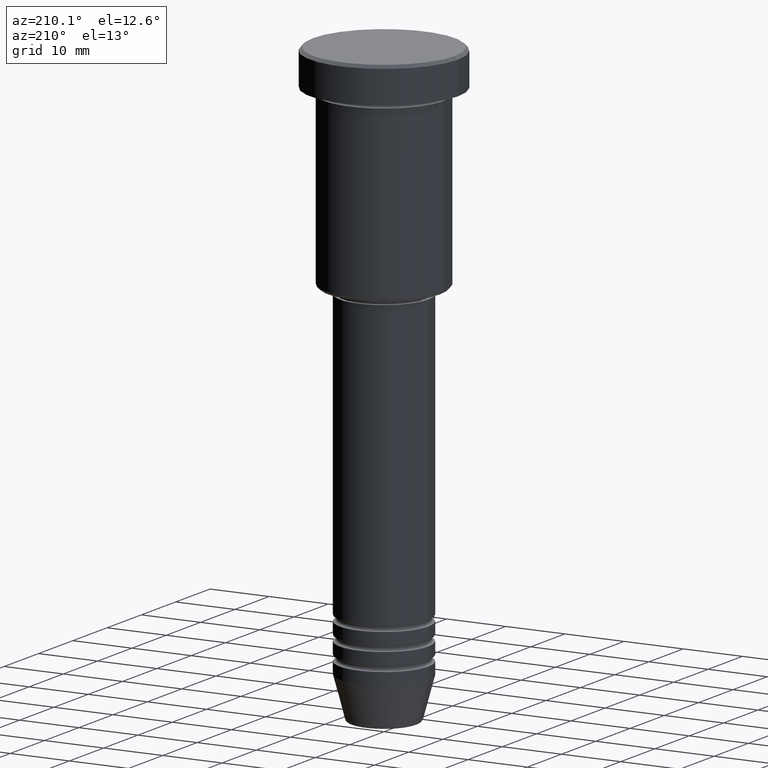
[diagram: clean part render]
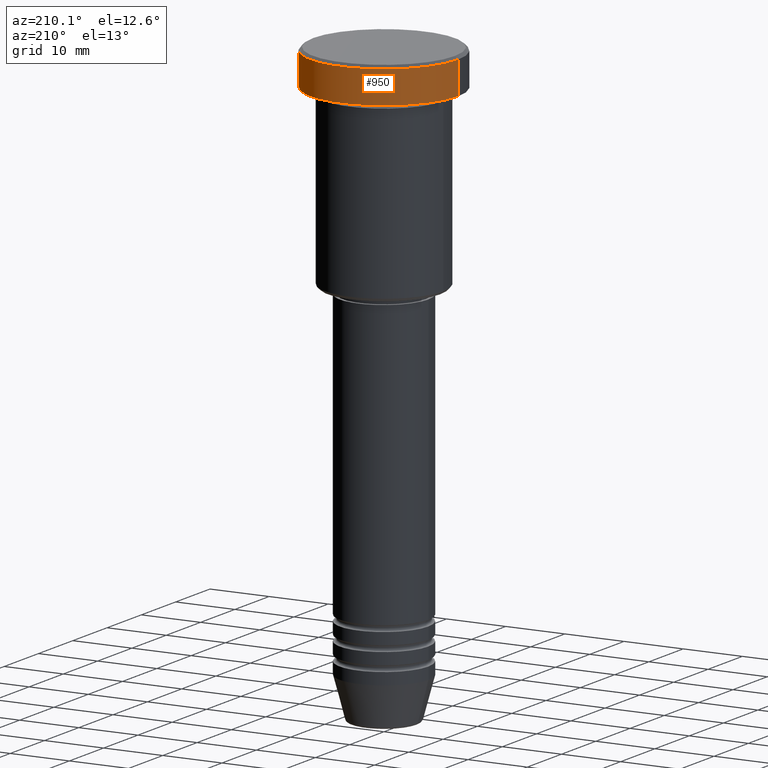
[diagram: same view with one face highlighted and labeled with its STEP entity id]
A machine part, auxiliary view. The second image highlights one B-rep face of the part: STEP entity #950.
In plain terms, the highlighted cylindrical surface (partial cylindrical patch) has radius 12.5 mm, axis along (-0, -0, 1).
Its self-contained STEP definition (entity closure, byte-faithful):
#21 = EDGE_CURVE ( 'NONE', #497, #1048, #1008, .T. ) ;
#36 = CARTESIAN_POINT ( 'NONE',  ( -12.50000000000000000, 1.530808498934191521E-15, 0.000000000000000000 ) ) ;
#61 = CARTESIAN_POINT ( 'NONE',  ( 12.50000000000000000, 0.000000000000000000, -0.5000000000000056621 ) ) ;
#77 = CARTESIAN_POINT ( 'NONE',  ( 0.000000000000000000, 0.000000000000000000, -5.999999999999996447 ) ) ;
#98 = FACE_OUTER_BOUND ( 'NONE', #161, .T. ) ;
#104 = CARTESIAN_POINT ( 'NONE',  ( -12.50000000000000000, 1.530808498934191521E-15, -5.999999999999996447 ) ) ;
#105 = DIRECTION ( 'NONE',  ( 1.000000000000000000, 0.000000000000000000, 0.000000000000000000 ) ) ;
#158 = AXIS2_PLACEMENT_3D ( 'NONE', #281, #722, #105 ) ;
#161 = EDGE_LOOP ( 'NONE', ( #804, #246, #1068, #225 ) ) ;
#190 = CARTESIAN_POINT ( 'NONE',  ( 12.50000000000000000, 0.000000000000000000, -5.999999999999996447 ) ) ;
#225 = ORIENTED_EDGE ( 'NONE', *, *, #286, .F. ) ;
#246 = ORIENTED_EDGE ( 'NONE', *, *, #843, .T. ) ;
#281 = CARTESIAN_POINT ( 'NONE',  ( 0.000000000000000000, 0.000000000000000000, -0.5000000000000056621 ) ) ;
#285 = CARTESIAN_POINT ( 'NONE',  ( 0.000000000000000000, 0.000000000000000000, 0.000000000000000000 ) ) ;
#286 = EDGE_CURVE ( 'NONE', #497, #1164, #593, .T. ) ;
#384 = AXIS2_PLACEMENT_3D ( 'NONE', #285, #723, #822 ) ;
#442 = CARTESIAN_POINT ( 'NONE',  ( -12.50000000000000000, 1.530808498934191521E-15, -0.5000000000000056621 ) ) ;
#497 = VERTEX_POINT ( 'NONE', #190 ) ;
#593 = LINE ( 'NONE', #785, #1167 ) ;
#663 = DIRECTION ( 'NONE',  ( -0.000000000000000000, -0.000000000000000000, 1.000000000000000000 ) ) ;
#722 = DIRECTION ( 'NONE',  ( 0.000000000000000000, 0.000000000000000000, -1.000000000000000000 ) ) ;
#723 = DIRECTION ( 'NONE',  ( -0.000000000000000000, -0.000000000000000000, 1.000000000000000000 ) ) ;
#785 = CARTESIAN_POINT ( 'NONE',  ( 12.50000000000000000, 0.000000000000000000, 0.000000000000000000 ) ) ;
#792 = VECTOR ( 'NONE', #663, 1000.000000000000000 ) ;
#804 = ORIENTED_EDGE ( 'NONE', *, *, #21, .T. ) ;
#806 = DIRECTION ( 'NONE',  ( -0.000000000000000000, -0.000000000000000000, 1.000000000000000000 ) ) ;
#815 = AXIS2_PLACEMENT_3D ( 'NONE', #77, #806, #913 ) ;
#822 = DIRECTION ( 'NONE',  ( 1.000000000000000000, 0.000000000000000000, 0.000000000000000000 ) ) ;
#838 = CIRCLE ( 'NONE', #158, 12.50000000000000000 ) ;
#843 = EDGE_CURVE ( 'NONE', #1048, #1041, #853, .T. ) ;
#853 = LINE ( 'NONE', #36, #792 ) ;
#913 = DIRECTION ( 'NONE',  ( 1.000000000000000000, 0.000000000000000000, 0.000000000000000000 ) ) ;
#950 = ADVANCED_FACE ( 'NONE', ( #98 ), #995, .T. ) ;
#995 = CYLINDRICAL_SURFACE ( 'NONE', #384, 12.50000000000000000 ) ;
#1008 = CIRCLE ( 'NONE', #815, 12.50000000000000000 ) ;
#1026 = EDGE_CURVE ( 'NONE', #1041, #1164, #838, .T. ) ;
#1041 = VERTEX_POINT ( 'NONE', #442 ) ;
#1048 = VERTEX_POINT ( 'NONE', #104 ) ;
#1068 = ORIENTED_EDGE ( 'NONE', *, *, #1026, .T. ) ;
#1073 = DIRECTION ( 'NONE',  ( -0.000000000000000000, -0.000000000000000000, 1.000000000000000000 ) ) ;
#1164 = VERTEX_POINT ( 'NONE', #61 ) ;
#1167 = VECTOR ( 'NONE', #1073, 1000.000000000000000 ) ;